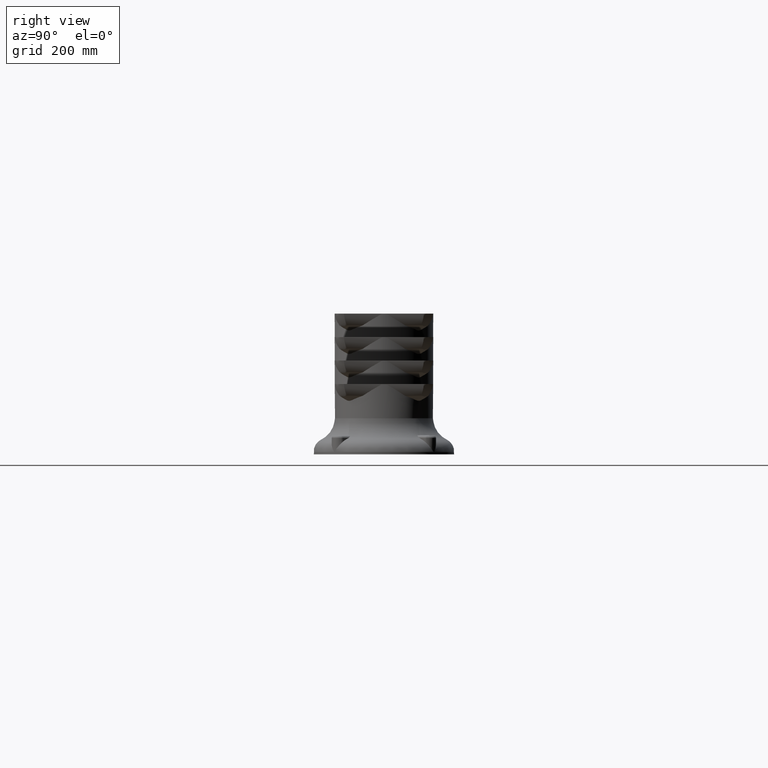
[diagram: clean part render]
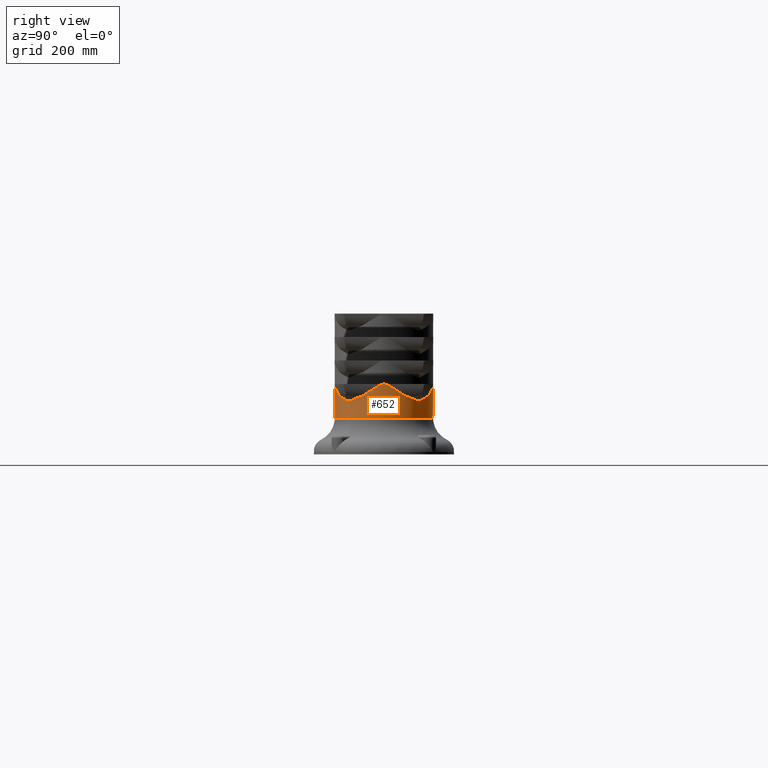
[diagram: same view with one face highlighted and labeled with its STEP entity id]
A machine part, right view. The second image highlights one B-rep face of the part: STEP entity #652.
In plain terms, the highlighted cylindrical surface (bore or boss wall) has radius 105 mm, axis along (-0, 0, 1).
Its self-contained STEP definition (entity closure, byte-faithful):
#652=ADVANCED_FACE('',(#1452,#1453),#1454,.T.);
#1452=FACE_OUTER_BOUND('',#6061,.T.);
#1453=FACE_OUTER_BOUND('',#6062,.T.);
#1454=CYLINDRICAL_SURFACE('',#6063,105.0);
#6061=EDGE_LOOP('',(#9494,#9495,#9496,#9497,#9498,#9499,#9500,#9501,#9502,#9503,#9504,#9505,#9506,#9507,#9508,#9509,#9510,#9511,#9512,#9513));
#6062=EDGE_LOOP('',(#9514));
#6063=AXIS2_PLACEMENT_3D('',#9515,#9516,#9517);
#9494=ORIENTED_EDGE('',*,*,#10851,.T.);
#9495=ORIENTED_EDGE('',*,*,#10847,.T.);
#9496=ORIENTED_EDGE('',*,*,#10887,.T.);
#9497=ORIENTED_EDGE('',*,*,#10888,.T.);
#9498=ORIENTED_EDGE('',*,*,#10885,.T.);
#9499=ORIENTED_EDGE('',*,*,#10889,.T.);
#9500=ORIENTED_EDGE('',*,*,#10890,.T.);
#9501=ORIENTED_EDGE('',*,*,#10891,.T.);
#9502=ORIENTED_EDGE('',*,*,#10892,.T.);
#9503=ORIENTED_EDGE('',*,*,#10893,.T.);
#9504=ORIENTED_EDGE('',*,*,#10894,.T.);
#9505=ORIENTED_EDGE('',*,*,#10867,.T.);
#9506=ORIENTED_EDGE('',*,*,#10877,.T.);
#9507=ORIENTED_EDGE('',*,*,#10895,.T.);
#9508=ORIENTED_EDGE('',*,*,#10833,.T.);
#9509=ORIENTED_EDGE('',*,*,#10864,.T.);
#9510=ORIENTED_EDGE('',*,*,#10862,.T.);
#9511=ORIENTED_EDGE('',*,*,#10896,.T.);
#9512=ORIENTED_EDGE('',*,*,#10838,.T.);
#9513=ORIENTED_EDGE('',*,*,#10845,.T.);
#9514=ORIENTED_EDGE('',*,*,#10824,.T.);
#9515=CARTESIAN_POINT('',(0.0,0.0,50.0));
#9516=DIRECTION('',(0.0,0.0,-1.0));
#9517=DIRECTION('',(-1.0,0.0,0.0));
#10824=EDGE_CURVE('',#12298,#12298,#12299,.T.);
#10833=EDGE_CURVE('',#12316,#12314,#12317,.F.);
#10838=EDGE_CURVE('',#12320,#12324,#12326,.F.);
#10845=EDGE_CURVE('',#12324,#12336,#12338,.F.);
#10847=EDGE_CURVE('',#12342,#12339,#12343,.F.);
#10851=EDGE_CURVE('',#12336,#12342,#12349,.F.);
#10862=EDGE_CURVE('',#12367,#12365,#12368,.F.);
#10864=EDGE_CURVE('',#12314,#12367,#12370,.F.);
#10867=EDGE_CURVE('',#12354,#12372,#12374,.F.);
#10877=EDGE_CURVE('',#12372,#12391,#12393,.F.);
#10885=EDGE_CURVE('',#12406,#12397,#12407,.F.);
#10887=EDGE_CURVE('',#12339,#12409,#12410,.F.);
#10888=EDGE_CURVE('',#12409,#12406,#12411,.F.);
#10889=EDGE_CURVE('',#12397,#12412,#12413,.F.);
#10890=EDGE_CURVE('',#12412,#12414,#12415,.F.);
#10891=EDGE_CURVE('',#12414,#12416,#12417,.F.);
#10892=EDGE_CURVE('',#12416,#12418,#12419,.F.);
#10893=EDGE_CURVE('',#12418,#12394,#12420,.F.);
#10894=EDGE_CURVE('',#12394,#12354,#12421,.F.);
#10895=EDGE_CURVE('',#12391,#12316,#12422,.F.);
#10896=EDGE_CURVE('',#12365,#12320,#12423,.F.);
#12298=VERTEX_POINT('',#19252);
#12299=CIRCLE('',#19253,105.0);
#12314=VERTEX_POINT('',#19302);
#12316=VERTEX_POINT('',#19305);
#12317=B_SPLINE_CURVE_WITH_KNOTS('',3,(#19306,#19307,#19308,#19309,#19310,#19311,#19312,#19313,#19314,#19315,#19316,#19317,#19318,#19319,#19320,#19321,#19322,#19323,#19324,#19325),.UNSPECIFIED.,.F.,.F.,(4,2,2,2,2,2,2,2,2,4),(0.0529752679631362,0.054631858086294,0.0562884482094519,0.0596016284557676,0.0629148087020833,0.066227988948399,0.0728543494410304,0.0794807099336618,0.0927334309189246,0.105986151904187),.UNSPECIFIED.);
#12320=VERTEX_POINT('',#19329);
#12324=VERTEX_POINT('',#19356);
#12326=B_SPLINE_CURVE_WITH_KNOTS('',3,(#19359,#19360,#19361,#19362,#19363,#19364,#19365,#19366,#19367,#19368),.UNSPECIFIED.,.F.,.F.,(4,2,2,2,4),(0.047261650151174,0.0548823564385019,0.0586927095821658,0.0625030627258297,0.0777444753004853),.UNSPECIFIED.);
#12336=VERTEX_POINT('',#19480);
#12338=B_SPLINE_CURVE_WITH_KNOTS('',3,(#19483,#19484,#19485,#19486,#19487,#19488,#19489,#19490,#19491,#19492,#19493,#19494,#19495,#19496,#19497,#19498,#19499,#19500,#19501,#19502,#19503,#19504),.UNSPECIFIED.,.F.,.F.,(4,2,2,2,2,2,2,2,2,2,4),(1.28226765260562E-016,0.00333559431198814,0.00500339146798215,0.00667118862397617,0.0100067829359642,0.0133423772479523,0.0200135658719284,0.0233491601839165,0.0266847544959046,0.0400271317438568,0.0533695089918091),.UNSPECIFIED.);
#12339=VERTEX_POINT('',#19505);
#12342=VERTEX_POINT('',#19511);
#12343=B_SPLINE_CURVE_WITH_KNOTS('',3,(#19512,#19513,#19514,#19515,#19516,#19517,#19518,#19519,#19520,#19521),.UNSPECIFIED.,.F.,.F.,(4,2,2,2,4),(0.604728148748882,0.619942532070945,0.623746127901461,0.627549723731977,0.635156915393009),.UNSPECIFIED.);
#12349=B_SPLINE_CURVE_WITH_KNOTS('',3,(#19554,#19555,#19556,#19557,#19558,#19559,#19560,#19561,#19562,#19563,#19564,#19565,#19566,#19567,#19568,#19569,#19570,#19571,#19572,#19573,#19574,#19575,#19576,#19577,#19578,#19579,#19580,#19581),.UNSPECIFIED.,.F.,.F.,(4,2,2,2,2,2,2,2,2,2,2,2,2,4),(0.743197199230842,0.756729918465083,0.770262637699324,0.777028997316444,0.780412177125004,0.783795356933565,0.787178536742125,0.790561716550685,0.793944896359245,0.795636486263525,0.796482281215665,0.796905178691735,0.79711662742977,0.797328076167805),.UNSPECIFIED.);
#12354=VERTEX_POINT('',#19590);
#12365=VERTEX_POINT('',#19712);
#12367=VERTEX_POINT('',#19721);
#12368=B_SPLINE_CURVE_WITH_KNOTS('',3,(#19722,#19723,#19724,#19725,#19726,#19727,#19728,#19729,#19730,#19731),.UNSPECIFIED.,.F.,.F.,(4,2,2,2,4),(0.0908536728906321,0.094679076869414,0.0985044808481959,0.10615528880576,0.121456904720887),.UNSPECIFIED.);
#12370=B_SPLINE_CURVE_WITH_KNOTS('',3,(#19734,#19735,#19736,#19737,#19738,#19739,#19740,#19741,#19742,#19743,#19744,#19745,#19746,#19747,#19748,#19749,#19750,#19751,#19752,#19753,#19754,#19755,#19756,#19757),.UNSPECIFIED.,.F.,.F.,(4,2,2,2,2,2,2,2,2,2,2,4),(4.65475153733864E-017,0.0132438169907841,0.0264876339815682,0.0331095424769602,0.0397314509723523,0.0430424052200483,0.0446978823438963,0.0463533594677443,0.0496643137154403,0.0513197908392882,0.0521475294012122,0.0529752679631362),.UNSPECIFIED.);
#12372=VERTEX_POINT('',#19760);
#12374=B_SPLINE_CURVE_WITH_KNOTS('',3,(#19765,#19766,#19767,#19768,#19769,#19770),.UNSPECIFIED.,.F.,.F.,(4,2,4),(0.263427661311817,0.278676956871652,0.293926252431487),.UNSPECIFIED.);
#12391=VERTEX_POINT('',#19911);
#12393=B_SPLINE_CURVE_WITH_KNOTS('',3,(#19916,#19917,#19918,#19919,#19920,#19921,#19922,#19923,#19924,#19925,#19926,#19927,#19928,#19929),.UNSPECIFIED.,.F.,.F.,(4,2,2,2,2,2,4),(0.0,0.00337598773289794,0.0050639815993469,0.00675197546579586,0.0101279631986938,0.0118159570651427,0.0135039509315917),.UNSPECIFIED.);
#12394=VERTEX_POINT('',#19930);
#12397=VERTEX_POINT('',#19935);
#12406=VERTEX_POINT('',#19980);
#12407=B_SPLINE_CURVE_WITH_KNOTS('',3,(#19981,#19982,#19983,#19984,#19985,#19986,#19987,#19988,#19989,#19990,#19991,#19992,#19993,#19994,#19995,#19996,#19997,#19998,#19999,#20000),.UNSPECIFIED.,.F.,.F.,(4,2,2,2,2,2,2,2,2,4),(0.0529752679631367,0.0546318733766136,0.0562884787900905,0.0596016896170444,0.0629149004439982,0.0662281112709521,0.0728545329248597,0.0794809545787674,0.0927337978865827,0.105986641194398),.UNSPECIFIED.);
#12409=VERTEX_POINT('',#20003);
#12410=B_SPLINE_CURVE_WITH_KNOTS('',3,(#20004,#20005,#20006,#20007,#20008,#20009,#20010,#20011,#20012,#20013,#20014,#20015,#20016,#20017),.UNSPECIFIED.,.F.,.F.,(4,2,2,2,2,2,4),(0.0,0.0033759877330717,0.00506398159960755,0.00675197546614339,0.0101279631992151,0.011815957065751,0.0135039509322869),.UNSPECIFIED.);
#12411=B_SPLINE_CURVE_WITH_KNOTS('',3,(#20018,#20019,#20020,#20021,#20022,#20023,#20024,#20025,#20026,#20027),.UNSPECIFIED.,.F.,.F.,(4,2,2,2,4),(0.561651975502378,0.576893743808659,0.580704185885229,0.584514627961799,0.59213551211494),.UNSPECIFIED.);
#12412=VERTEX_POINT('',#20028);
#12413=B_SPLINE_CURVE_WITH_KNOTS('',3,(#20029,#20030,#20031,#20032,#20033,#20034,#20035,#20036,#20037,#20038,#20039,#20040,#20041,#20042,#20043,#20044,#20045,#20046,#20047,#20048,#20049,#20050,#20051,#20052),.UNSPECIFIED.,.F.,.F.,(4,2,2,2,2,2,2,2,2,2,2,4),(9.53940196617675E-017,0.0132438169907842,0.0264876339815683,0.0331095424769603,0.0397314509723524,0.0430424052200485,0.0446978823438965,0.0463533594677445,0.0496643137154406,0.0513197908392887,0.0521475294012127,0.0529752679631367),.UNSPECIFIED.);
#12414=VERTEX_POINT('',#20053);
#12415=B_SPLINE_CURVE_WITH_KNOTS('',3,(#20054,#20055,#20056,#20057,#20058,#20059,#20060,#20061),.UNSPECIFIED.,.F.,.F.,(4,2,2,4),(0.43686137349039,0.452096401063177,0.459713914849571,0.467331428635965),.UNSPECIFIED.);
#12416=VERTEX_POINT('',#20062);
#12417=B_SPLINE_CURVE_WITH_KNOTS('',3,(#20063,#20064,#20065,#20066,#20067,#20068,#20069,#20070,#20071,#20072,#20073,#20074,#20075,#20076),.UNSPECIFIED.,.F.,.F.,(4,2,2,2,2,2,4),(0.0,0.00337599409509132,0.00506399114263701,0.00675198819018269,0.010127982285274,0.0118159793328197,0.0135039763803654),.UNSPECIFIED.);
#12418=VERTEX_POINT('',#20077);
#12419=B_SPLINE_CURVE_WITH_KNOTS('',3,(#20078,#20079,#20080,#20081,#20082,#20083),.UNSPECIFIED.,.F.,.F.,(4,2,4),(0.388179078106869,0.403441557141028,0.418704036175188),.UNSPECIFIED.);
#12420=B_SPLINE_CURVE_WITH_KNOTS('',3,(#20084,#20085,#20086,#20087,#20088,#20089,#20090,#20091,#20092,#20093,#20094,#20095,#20096,#20097,#20098,#20099,#20100,#20101,#20102,#20103),.UNSPECIFIED.,.F.,.F.,(4,2,2,2,2,2,2,2,2,4),(0.0529752679631359,0.0546318733766128,0.0562884787900897,0.0596016896170435,0.0629149004439973,0.0662281112709511,0.0728545329248587,0.0794809545787663,0.0927337978865814,0.105986641194397),.UNSPECIFIED.);
#12421=B_SPLINE_CURVE_WITH_KNOTS('',3,(#20104,#20105,#20106,#20107,#20108,#20109,#20110,#20111,#20112,#20113,#20114,#20115,#20116,#20117,#20118,#20119,#20120,#20121,#20122,#20123,#20124,#20125,#20126,#20127),.UNSPECIFIED.,.F.,.F.,(4,2,2,2,2,2,2,2,2,2,2,4),(3.08136895321366E-016,0.0132438169907842,0.026487633981568,0.0331095424769599,0.0397314509723519,0.0430424052200478,0.0446978823438959,0.0463533594677439,0.0496643137154399,0.0513197908392879,0.0521475294012119,0.0529752679631359),.UNSPECIFIED.);
#12422=B_SPLINE_CURVE_WITH_KNOTS('',3,(#20128,#20129,#20130,#20131,#20132,#20133,#20134,#20135,#20136,#20137),.UNSPECIFIED.,.F.,.F.,(4,2,2,2,4),(0.215923523500564,0.219734610747609,0.223545697994654,0.231167872488744,0.246412221476924),.UNSPECIFIED.);
#12423=B_SPLINE_CURVE_WITH_KNOTS('',3,(#20138,#20139,#20140,#20141,#20142,#20143,#20144,#20145,#20146,#20147,#20148,#20149,#20150,#20151),.UNSPECIFIED.,.F.,.F.,(4,2,2,2,2,2,4),(0.0,0.00337598143400586,0.0050639721510088,0.00675196286801174,0.0101279443020177,0.0118159350190206,0.0135039257360236),.UNSPECIFIED.);
#19252=CARTESIAN_POINT('',(105.0,0.0,-91.9374728496907));
#19253=AXIS2_PLACEMENT_3D('',#21766,#21767,#21768);
#19302=CARTESIAN_POINT('',(1.2490009027033E-013,105.0,-165.0));
#19305=CARTESIAN_POINT('',(45.2054129230061,94.7706211990855,-140.0));
#19306=CARTESIAN_POINT('',(2.92876786744288E-013,105.0,-165.0));
#19307=CARTESIAN_POINT('',(0.559636922380468,105.0,-165.0));
#19308=CARTESIAN_POINT('',(1.11661794278559,104.995527342259,-164.960874228965));
#19309=CARTESIAN_POINT('',(2.22570692108497,104.977873031466,-164.810894996055));
#19310=CARTESIAN_POINT('',(2.77965145104868,104.964632505937,-164.699723462338));
#19311=CARTESIAN_POINT('',(4.42346928363859,104.912511535469,-164.28065201145));
#19312=CARTESIAN_POINT('',(5.47184081130426,104.862355143875,-163.897982711073));
#19313=CARTESIAN_POINT('',(7.52174895875096,104.73527515019,-163.032750903864));
#19314=CARTESIAN_POINT('',(8.52274961057367,104.658243879366,-162.549012057191));
#19315=CARTESIAN_POINT('',(10.4998063026137,104.478415667758,-161.530253170439));
#19316=CARTESIAN_POINT('',(11.4755413491454,104.375587201475,-160.994523109309));
#19317=CARTESIAN_POINT('',(14.3808860467174,104.028818738589,-159.345015417682));
#19318=CARTESIAN_POINT('',(16.2746770558397,103.748485946508,-158.199295098343));
#19319=CARTESIAN_POINT('',(20.0192822423246,103.091424415258,-155.890520711078));
#19320=CARTESIAN_POINT('',(21.8692358892809,102.714589214007,-154.725116424576));
#19321=CARTESIAN_POINT('',(27.3759845228823,101.438438151106,-151.234753039369));
#19322=CARTESIAN_POINT('',(30.9901419797646,100.394109672947,-148.916080649132));
#19323=CARTESIAN_POINT('',(38.1480687307734,97.8983708192422,-144.375739644476));
#19324=CARTESIAN_POINT('',(41.6905081921658,96.4472243249515,-142.151794351967));
#19325=CARTESIAN_POINT('',(45.2054129230064,94.7706211990851,-140.0));
#19329=CARTESIAN_POINT('',(-78.7785828636489,69.4186071433993,-130.204488085818));
#19356=CARTESIAN_POINT('',(-94.7706211990853,45.2054129230059,-140.0));
#19359=CARTESIAN_POINT('',(-94.7706211990854,45.2054129230059,-140.0));
#19360=CARTESIAN_POINT('',(-93.718985932684,47.4101074723395,-139.261652412061));
#19361=CARTESIAN_POINT('',(-92.5942003216278,49.5705302421163,-138.49208950529));
#19362=CARTESIAN_POINT('',(-90.7970444298826,52.7482471103969,-137.302024445151));
#19363=CARTESIAN_POINT('',(-90.1796384667046,53.7969847319297,-136.899371172522));
#19364=CARTESIAN_POINT('',(-88.9077841440547,55.873864004803,-136.083866350222));
#19365=CARTESIAN_POINT('',(-88.2524676896332,56.9033064100413,-135.670478687571));
#19366=CARTESIAN_POINT('',(-84.8922191008149,61.9843566992182,-133.588558106415));
#19367=CARTESIAN_POINT('',(-81.958558335477,65.8098045113618,-131.888515401494));
#19368=CARTESIAN_POINT('',(-78.7785569708876,69.4185779282796,-130.204474373722));
#19480=CARTESIAN_POINT('',(-105.0,1.2490009027033E-013,-165.0));
#19483=CARTESIAN_POINT('',(-105.0,0.0,-165.0));
#19484=CARTESIAN_POINT('',(-105.0,1.13588554444859,-165.0));
#19485=CARTESIAN_POINT('',(-104.981699183321,2.23751335050485,-164.837083043986));
#19486=CARTESIAN_POINT('',(-104.93060358624,3.85478123633379,-164.42605111249));
#19487=CARTESIAN_POINT('',(-104.90960350891,4.38811419534756,-164.261779016902));
#19488=CARTESIAN_POINT('',(-104.860003455475,5.44611144816269,-163.892387296658));
#19489=CARTESIAN_POINT('',(-104.83135578452,5.97105298971405,-163.687056670346));
#19490=CARTESIAN_POINT('',(-104.73566025942,7.5171795062609,-163.03510703998));
#19491=CARTESIAN_POINT('',(-104.658570700645,8.51845803724773,-162.551071018721));
#19492=CARTESIAN_POINT('',(-104.47929974017,10.4907804398943,-161.535055533915));
#19493=CARTESIAN_POINT('',(-104.377079779888,11.4613775656243,-161.002288287983));
#19494=CARTESIAN_POINT('',(-104.033322097794,14.3464187033715,-159.365127914467));
#19495=CARTESIAN_POINT('',(-103.75474045212,16.2349809057401,-158.223412557887));
#19496=CARTESIAN_POINT('',(-103.262469568479,19.0464582388208,-156.490498708333));
#19497=CARTESIAN_POINT('',(-103.085955751981,19.9796668615874,-155.908781449674));
#19498=CARTESIAN_POINT('',(-102.707822193513,21.8404354687595,-154.741268343382));
#19499=CARTESIAN_POINT('',(-102.506066070156,22.7684930909879,-154.15511655317));
#19500=CARTESIAN_POINT('',(-101.437062053609,27.3840863084303,-151.229698200384));
#19501=CARTESIAN_POINT('',(-100.388175188989,31.0096782003142,-148.903597542033));
#19502=CARTESIAN_POINT('',(-97.8891566159095,38.1719645405908,-144.360673955487));
#19503=CARTESIAN_POINT('',(-96.4392210523005,41.7072866058936,-142.141522751836));
#19504=CARTESIAN_POINT('',(-94.7706211990849,45.2054129230069,-140.0));
#19505=CARTESIAN_POINT('',(-78.7790007725139,-69.4186545887813,-130.204841826271));
#19511=CARTESIAN_POINT('',(-94.7706211990854,-45.2054129230055,-140.0));
#19512=CARTESIAN_POINT('',(-78.7787716637909,-69.4183342867307,-130.204588069386));
#19513=CARTESIAN_POINT('',(-81.9623848581456,-65.8054395164821,-131.890548424813));
#19514=CARTESIAN_POINT('',(-84.8918820419808,-61.9834891271241,-133.58861277539));
#19515=CARTESIAN_POINT('',(-88.2412439706994,-56.9206192654834,-135.663459449753));
#19516=CARTESIAN_POINT('',(-88.8953921448565,-55.8936680492118,-136.075992827701));
#19517=CARTESIAN_POINT('',(-90.1719574357903,-53.8099522837674,-136.894375122716));
#19518=CARTESIAN_POINT('',(-90.7935285083935,-52.7543922671603,-137.299706550821));
#19519=CARTESIAN_POINT('',(-92.5967568152481,-49.5661529395342,-138.493761784816));
#19520=CARTESIAN_POINT('',(-93.7216414636633,-47.4045403000863,-139.263516846391));
#19521=CARTESIAN_POINT('',(-94.7706211990854,-45.2054129230059,-140.0));
#19554=CARTESIAN_POINT('',(-94.7706211990851,-45.2054129230065,-140.0));
#19555=CARTESIAN_POINT('',(-96.4475446301919,-41.6898366901344,-142.152205439718));
#19556=CARTESIAN_POINT('',(-97.8990541450872,-38.1464427533276,-144.376758950356));
#19557=CARTESIAN_POINT('',(-100.395431263249,-30.9860174708179,-148.91870894115));
#19558=CARTESIAN_POINT('',(-101.440036489564,-27.3703223301348,-151.238387748556));
#19559=CARTESIAN_POINT('',(-102.716421406276,-21.8607104265425,-154.73049717006));
#19560=CARTESIAN_POINT('',(-103.093304383817,-20.0097094119041,-155.896523412681));
#19561=CARTESIAN_POINT('',(-103.586110299073,-17.1994832186662,-157.629045787544));
#19562=CARTESIAN_POINT('',(-103.7382821602,-16.2570405104156,-158.203677515222));
#19563=CARTESIAN_POINT('',(-104.018322519635,-14.356571035864,-159.340528470933));
#19564=CARTESIAN_POINT('',(-104.146319626539,-13.3975068241589,-159.903508752666));
#19565=CARTESIAN_POINT('',(-104.376977698548,-11.4627923026297,-161.001578397337));
#19566=CARTESIAN_POINT('',(-104.479658786869,-10.4874987338699,-161.536892043108));
#19567=CARTESIAN_POINT('',(-104.659373012804,-8.50895824881952,-162.555817779382));
#19568=CARTESIAN_POINT('',(-104.736441120744,-7.50608744517276,-163.040180853786));
#19569=CARTESIAN_POINT('',(-104.863662533415,-5.44754324918582,-163.907402762345));
#19570=CARTESIAN_POINT('',(-104.913868443436,-4.38660523229281,-164.291352705003));
#19571=CARTESIAN_POINT('',(-104.964829406118,-2.7703992586421,-164.701413998741));
#19572=CARTESIAN_POINT('',(-104.977844783384,-2.22618328034606,-164.810661922256));
#19573=CARTESIAN_POINT('',(-104.991034136286,-1.39953486333548,-164.922699537259));
#19574=CARTESIAN_POINT('',(-104.994373386713,-1.12226550648775,-164.951410931959));
#19575=CARTESIAN_POINT('',(-104.997735618125,-0.703559343837834,-164.980400740896));
#19576=CARTESIAN_POINT('',(-104.998581828161,-0.563524068053009,-164.98772018559));
#19577=CARTESIAN_POINT('',(-104.999430972715,-0.352748821635344,-164.995069967844));
#19578=CARTESIAN_POINT('',(-104.999643987583,-0.282370059995109,-164.996915215689));
#19579=CARTESIAN_POINT('',(-104.999928501288,-0.14136864676107,-164.999380234053));
#19580=CARTESIAN_POINT('',(-105.0,-0.0720056285210285,-165.0));
#19581=CARTESIAN_POINT('',(-105.0,-2.45582766141393E-014,-165.0));
#19590=CARTESIAN_POINT('',(94.7706211990856,45.2054129230059,-140.0));
#19712=CARTESIAN_POINT('',(-69.4195999590601,78.7798550654873,-130.205294321023));
#19721=CARTESIAN_POINT('',(-45.2054129230057,94.7706211990855,-140.0));
#19722=CARTESIAN_POINT('',(-69.4183249734136,78.7787798705054,-130.204592415453));
#19723=CARTESIAN_POINT('',(-68.5064801631653,79.5822797402316,-130.630105518343));
#19724=CARTESIAN_POINT('',(-67.5778960058831,80.3723313098654,-131.05787879086));
#19725=CARTESIAN_POINT('',(-65.6952319624315,81.918375021524,-131.91248155196));
#19726=CARTESIAN_POINT('',(-64.7429074091537,82.6730105784675,-132.338529999681));
#19727=CARTESIAN_POINT('',(-61.8527869929402,84.8829528986624,-133.61060928005));
#19728=CARTESIAN_POINT('',(-59.8819070676959,86.2843873067415,-134.450601122272));
#19729=CARTESIAN_POINT('',(-53.8332627713084,90.2791945425468,-136.927219994778));
#19730=CARTESIAN_POINT('',(-49.6206597248281,92.6645565525947,-138.521343091602));
#19731=CARTESIAN_POINT('',(-45.2054129230058,94.7706211990854,-140.0));
#19734=CARTESIAN_POINT('',(-45.2054129230057,94.7706211990855,-140.0));
#19735=CARTESIAN_POINT('',(-41.6690832496596,96.4574439833286,-142.164910516929));
#19736=CARTESIAN_POINT('',(-38.1132539546151,97.9121472179046,-144.397653682108));
#19737=CARTESIAN_POINT('',(-30.9437131776079,100.408641633136,-148.945702117299));
#19738=CARTESIAN_POINT('',(-27.3313026090905,101.450106283527,-151.26328498223));
#19739=CARTESIAN_POINT('',(-21.8390868001762,102.720909894464,-154.744118900467));
#19740=CARTESIAN_POINT('',(-19.9959687630529,103.095778190044,-155.905026878397));
#19741=CARTESIAN_POINT('',(-16.2695582721816,103.749119133667,-158.202318121093));
#19742=CARTESIAN_POINT('',(-14.3875057761383,104.02764053665,-159.340717382955));
#19743=CARTESIAN_POINT('',(-11.5031856896916,104.372478645037,-160.979093572037));
#19744=CARTESIAN_POINT('',(-10.5313106009537,104.475254553933,-161.513312524283));
#19745=CARTESIAN_POINT('',(-9.04702007925871,104.6106985779,-162.279197650009));
#19746=CARTESIAN_POINT('',(-8.54777412699935,104.652722933001,-162.528472944777));
#19747=CARTESIAN_POINT('',(-7.53712506137413,104.730361431759,-163.009809940438));
#19748=CARTESIAN_POINT('',(-7.02442960949112,104.766052922119,-163.242440862693));
#19749=CARTESIAN_POINT('',(-5.47303469936643,104.862384657489,-163.897912523383));
#19750=CARTESIAN_POINT('',(-4.42172835766284,104.912459006065,-164.280350935904));
#19751=CARTESIAN_POINT('',(-2.79607976418292,104.964164704171,-164.695902392247));
#19752=CARTESIAN_POINT('',(-2.24592503240664,104.977476500861,-164.807551501694));
#19753=CARTESIAN_POINT('',(-1.40449229959242,104.990980990347,-164.922239334423));
#19754=CARTESIAN_POINT('',(-1.12181510178997,104.994383028389,-164.951493532986));
#19755=CARTESIAN_POINT('',(-0.559919836707671,104.998882976968,-164.990294026214));
#19756=CARTESIAN_POINT('',(-0.279630461907513,105.0,-165.0));
#19757=CARTESIAN_POINT('',(2.92876786744288E-013,105.0,-165.0));
#19760=CARTESIAN_POINT('',(78.7787747125252,69.4189111419255,-130.204850472692));
#19765=CARTESIAN_POINT('',(78.778545598304,69.418590834271,-130.20459671876));
#19766=CARTESIAN_POINT('',(81.9799516749754,65.7855278239335,-131.899980235956));
#19767=CARTESIAN_POINT('',(84.9068856058977,61.9608689342514,-133.598038955915));
#19768=CARTESIAN_POINT('',(90.2366395859112,53.9043354343864,-136.89972604069));
#19769=CARTESIAN_POINT('',(92.6397402328637,49.672680591088,-138.504084115334));
#19770=CARTESIAN_POINT('',(94.7706009056892,45.2054554669521,-140.000155938894));
#19911=CARTESIAN_POINT('',(69.4184697039618,78.77870396988,-130.204552220439));
#19916=CARTESIAN_POINT('',(69.4184443316786,78.7786746941686,-130.204537444001));
#19917=CARTESIAN_POINT('',(70.2200301263183,78.0723307619016,-129.830476294001));
#19918=CARTESIAN_POINT('',(71.0271591441236,77.33937280005,-129.550691824903));
#19919=CARTESIAN_POINT('',(72.243361146454,76.1984629146838,-129.268074854167));
#19920=CARTESIAN_POINT('',(72.6510209831383,75.8099160729619,-129.196857204034));
#19921=CARTESIAN_POINT('',(73.4563011146896,75.0299010490484,-129.102717591701));
#19922=CARTESIAN_POINT('',(73.8550286232395,74.6374343415913,-129.079389827933));
#19923=CARTESIAN_POINT('',(75.0396054285358,73.4527402434325,-129.079843457192));
#19924=CARTESIAN_POINT('',(75.8138718667838,72.6532000610427,-129.173357143919));
#19925=CARTESIAN_POINT('',(76.9524433335001,71.4396887356056,-129.454665770358));
#19926=CARTESIAN_POINT('',(77.3289485501434,71.0319149615304,-129.572560787175));
#19927=CARTESIAN_POINT('',(78.0648381750916,70.2223630168451,-129.853915359822));
#19928=CARTESIAN_POINT('',(78.425310866314,69.8194523289978,-130.017533576061));
#19929=CARTESIAN_POINT('',(78.7784486255111,69.4187008820947,-130.204546091667));
#19930=CARTESIAN_POINT('',(105.0,0.0,-165.0));
#19935=CARTESIAN_POINT('',(1.2490009027033E-013,-105.0,-165.0));
#19980=CARTESIAN_POINT('',(-45.2059210937147,-94.7703788009144,-140.0));
#19981=CARTESIAN_POINT('',(7.43561064986123E-014,-105.0,-165.000000000001));
#19982=CARTESIAN_POINT('',(-0.559642087826273,-105.0,-165.000000000001));
#19983=CARTESIAN_POINT('',(-1.11662822425639,-104.995527259727,-164.960873500827));
#19984=CARTESIAN_POINT('',(-2.22572735027046,-104.977872625147,-164.810891571254));
#19985=CARTESIAN_POINT('',(-2.77967719000878,-104.964631848415,-164.699717997797));
#19986=CARTESIAN_POINT('',(-4.42350884026456,-104.912509964045,-164.280639732289));
#19987=CARTESIAN_POINT('',(-5.47188902617048,-104.862352712156,-163.897964697292));
#19988=CARTESIAN_POINT('',(-7.52181426768866,-104.735270544195,-163.032721001025));
#19989=CARTESIAN_POINT('',(-8.52282333120118,-104.658237956602,-162.548975946585));
#19990=CARTESIAN_POINT('',(-10.4998968159406,-104.478406652141,-161.530204652664));
#19991=CARTESIAN_POINT('',(-11.475640235519,-104.375576409367,-160.994468374454));
#19992=CARTESIAN_POINT('',(-14.3810100696907,-104.028801914594,-159.344942187835));
#19993=CARTESIAN_POINT('',(-16.2748165817785,-103.748464366387,-158.199210527125));
#19994=CARTESIAN_POINT('',(-20.0194537804733,-103.091391413083,-155.890413492451));
#19995=CARTESIAN_POINT('',(-21.8694233565051,-102.714549613914,-154.724998216422));
#19996=CARTESIAN_POINT('',(-27.3762195154177,-101.438376004276,-151.23460286324));
#19997=CARTESIAN_POINT('',(-30.9904083005718,-100.394028851792,-148.915910471228));
#19998=CARTESIAN_POINT('',(-38.1483970184676,-97.8982443185365,-144.375532656658));
#19999=CARTESIAN_POINT('',(-41.6908671202279,-96.4470708403663,-142.151570547803));
#20000=CARTESIAN_POINT('',(-45.2058022335419,-94.7704354976904,-139.999761667674));
#20003=CARTESIAN_POINT('',(-69.4187262526021,-78.7784778991736,-130.204560867039));
#20004=CARTESIAN_POINT('',(-69.4187008820945,-78.7784486255111,-130.20454609158));
#20005=CARTESIAN_POINT('',(-70.220284024752,-78.0721023927134,-129.830483611885));
#20006=CARTESIAN_POINT('',(-71.0274103946006,-77.3391420515513,-129.550697734608));
#20007=CARTESIAN_POINT('',(-72.243608419246,-76.1982284749778,-129.268078575695));
#20008=CARTESIAN_POINT('',(-72.6512669266634,-75.8096803763589,-129.196860180142));
#20009=CARTESIAN_POINT('',(-73.4565444423151,-75.0296628235073,-129.102719077102));
#20010=CARTESIAN_POINT('',(-73.8552706574863,-74.6371948437583,-129.079390566542));
#20011=CARTESIAN_POINT('',(-75.0398436225917,-73.4524969026906,-129.079841958331));
#20012=CARTESIAN_POINT('',(-75.8141075531803,-72.6529541243144,-129.173354160532));
#20013=CARTESIAN_POINT('',(-76.9526753265808,-71.4394388405352,-129.45466060044));
#20014=CARTESIAN_POINT('',(-77.3291793243227,-71.0316637296364,-129.572554894658));
#20015=CARTESIAN_POINT('',(-78.0650665643608,-70.2221091215247,-129.853908062067));
#20016=CARTESIAN_POINT('',(-78.4255380846098,-69.819197105021,-130.017525592833));
#20017=CARTESIAN_POINT('',(-78.7786746941686,-69.4184443316786,-130.204537443914));
#20018=CARTESIAN_POINT('',(-45.2059210937146,-94.7703788009146,-140.0));
#20019=CARTESIAN_POINT('',(-49.6094141179612,-92.6698917003092,-138.525259057225));
#20020=CARTESIAN_POINT('',(-53.8246918171539,-90.2851451586188,-136.930982647308));
#20021=CARTESIAN_POINT('',(-58.8814109533781,-86.9450889900326,-134.860378952656));
#20022=CARTESIAN_POINT('',(-59.8820571682105,-86.2590037785843,-134.442318749056));
#20023=CARTESIAN_POINT('',(-61.8622209282769,-84.8501156474858,-133.599936209773));
#20024=CARTESIAN_POINT('',(-62.8433741810614,-84.1260229198115,-133.174883158312));
#20025=CARTESIAN_POINT('',(-65.7392694832855,-81.9100609868295,-131.899839132813));
#20026=CARTESIAN_POINT('',(-67.6082972000923,-80.373756244752,-131.04937840369));
#20027=CARTESIAN_POINT('',(-69.4186970413418,-78.7784520099399,-130.204547156777));
#20028=CARTESIAN_POINT('',(45.2054129230058,-94.7706211990854,-140.0));
#20029=CARTESIAN_POINT('',(45.2054129230059,-94.7706211990854,-140.0));
#20030=CARTESIAN_POINT('',(41.6690832496598,-96.4574439833285,-142.164910516929));
#20031=CARTESIAN_POINT('',(38.1132539546153,-97.9121472179046,-144.397653682108));
#20032=CARTESIAN_POINT('',(30.9437131776081,-100.408641633136,-148.945702117299));
#20033=CARTESIAN_POINT('',(27.3313026090906,-101.450106283527,-151.26328498223));
#20034=CARTESIAN_POINT('',(21.8390868001762,-102.720909894464,-154.744118900467));
#20035=CARTESIAN_POINT('',(19.9959687630529,-103.095778190044,-155.905026878397));
#20036=CARTESIAN_POINT('',(16.2695582721817,-103.749119133667,-158.202318121093));
#20037=CARTESIAN_POINT('',(14.3875057761383,-104.02764053665,-159.340717382955));
#20038=CARTESIAN_POINT('',(11.5031856896916,-104.372478645037,-160.979093572037));
#20039=CARTESIAN_POINT('',(10.5313106009538,-104.475254553933,-161.513312524283));
#20040=CARTESIAN_POINT('',(9.04702007925878,-104.6106985779,-162.279197650009));
#20041=CARTESIAN_POINT('',(8.54777412699942,-104.652722933001,-162.528472944777));
#20042=CARTESIAN_POINT('',(7.5371250613742,-104.730361431759,-163.009809940439));
#20043=CARTESIAN_POINT('',(7.02442960949126,-104.766052922119,-163.242440862693));
#20044=CARTESIAN_POINT('',(5.47303469936659,-104.862384657489,-163.897912523384));
#20045=CARTESIAN_POINT('',(4.42172835766301,-104.912459006065,-164.280350935904));
#20046=CARTESIAN_POINT('',(2.79607976418306,-104.964164704171,-164.695902392248));
#20047=CARTESIAN_POINT('',(2.24592503240675,-104.977476500861,-164.807551501694));
#20048=CARTESIAN_POINT('',(1.40449229959249,-104.990980990347,-164.922239334424));
#20049=CARTESIAN_POINT('',(1.12181510179036,-104.994383028389,-164.951493532987));
#20050=CARTESIAN_POINT('',(0.559919836708059,-104.998882976968,-164.990294026215));
#20051=CARTESIAN_POINT('',(0.279630461907885,-105.0,-165.000000000001));
#20052=CARTESIAN_POINT('',(6.83954246964373E-014,-105.0,-165.000000000001));
#20053=CARTESIAN_POINT('',(69.418968506706,-78.7793851541948,-130.20503806883));
#20054=CARTESIAN_POINT('',(69.4183059723998,-78.7787966138242,-130.204729650522));
#20055=CARTESIAN_POINT('',(65.8046650521758,-81.9630649938577,-131.891045198757));
#20056=CARTESIAN_POINT('',(61.9873922881695,-84.8882204002622,-133.586799974882));
#20057=CARTESIAN_POINT('',(55.930466423363,-88.8968200613374,-136.069570974652));
#20058=CARTESIAN_POINT('',(53.8560222656059,-90.1695223718902,-136.886900652871));
#20059=CARTESIAN_POINT('',(49.5876912913192,-92.5854997904373,-138.486235694104));
#20060=CARTESIAN_POINT('',(47.4154202371363,-93.716450535771,-139.260039662714));
#20061=CARTESIAN_POINT('',(45.205455466952,-94.7706009056892,-140.000155938894));
#20062=CARTESIAN_POINT('',(78.7785990056142,-69.4185888133461,-130.204625001932));
#20063=CARTESIAN_POINT('',(78.7785697338252,-69.4185634444623,-130.204610227669));
#20064=CARTESIAN_POINT('',(78.0722235546789,-70.2201493455393,-129.830546950035));
#20065=CARTESIAN_POINT('',(77.3392631895859,-71.027278525275,-129.550760687812));
#20066=CARTESIAN_POINT('',(76.1983494548849,-72.2434808249506,-129.268141506098));
#20067=CARTESIAN_POINT('',(75.8098012629614,-72.6511407931212,-129.196923193974));
#20068=CARTESIAN_POINT('',(75.0297834816956,-73.4564212085064,-129.102782451748));
#20069=CARTESIAN_POINT('',(74.6373153836582,-73.8551488493508,-129.079454219155));
#20070=CARTESIAN_POINT('',(73.4526170773761,-75.039726021901,-129.079906727217));
#20071=CARTESIAN_POINT('',(72.6530740412004,-75.813992665304,-129.173420042928));
#20072=CARTESIAN_POINT('',(71.4395583592738,-76.9525643777038,-129.454728701851));
#20073=CARTESIAN_POINT('',(71.0317831319308,-77.3290696519159,-129.572623827353));
#20074=CARTESIAN_POINT('',(70.2222283564857,-78.0649593145484,-129.853978800438));
#20075=CARTESIAN_POINT('',(69.8193162704138,-78.4254320014718,-130.017597313152));
#20076=CARTESIAN_POINT('',(69.4185634444626,-78.7785697338251,-130.204610227669));
#20077=CARTESIAN_POINT('',(94.7703788009145,-45.2059210937149,-140.0));
#20078=CARTESIAN_POINT('',(94.7703788009147,-45.2059210937144,-140.0));
#20079=CARTESIAN_POINT('',(92.6514215784878,-49.6481351615582,-138.512291281865));
#20080=CARTESIAN_POINT('',(90.2570931625463,-53.8701024238445,-136.913030655037));
#20081=CARTESIAN_POINT('',(84.9301154391869,-61.9290424017233,-133.611800608714));
#20082=CARTESIAN_POINT('',(81.9973959903334,-65.7657285102742,-131.909219158883));
#20083=CARTESIAN_POINT('',(78.7785731179991,-69.4185596039854,-130.204611292497));
#20084=CARTESIAN_POINT('',(105.0,1.64553353990871E-013,-164.999999999999));
#20085=CARTESIAN_POINT('',(105.0,-0.559642087826168,-164.999999999999));
#20086=CARTESIAN_POINT('',(104.995527259727,-1.11662822425626,-164.960873500826));
#20087=CARTESIAN_POINT('',(104.977872625147,-2.22572735027029,-164.810891571252));
#20088=CARTESIAN_POINT('',(104.964631848415,-2.77967719000847,-164.699717997795));
#20089=CARTESIAN_POINT('',(104.912509964045,-4.42350884026427,-164.280639732288));
#20090=CARTESIAN_POINT('',(104.862352712156,-5.47188902617017,-163.897964697291));
#20091=CARTESIAN_POINT('',(104.735270544195,-7.52181426768836,-163.032721001025));
#20092=CARTESIAN_POINT('',(104.658237956602,-8.52282333120086,-162.548975946584));
#20093=CARTESIAN_POINT('',(104.478406652141,-10.4998968159403,-161.530204652663));
#20094=CARTESIAN_POINT('',(104.375576409367,-11.4756402355187,-160.994468374453));
#20095=CARTESIAN_POINT('',(104.028801914594,-14.3810100696903,-159.344942187834));
#20096=CARTESIAN_POINT('',(103.748464366387,-16.2748165817781,-158.199210527124));
#20097=CARTESIAN_POINT('',(103.091391413083,-20.0194537804729,-155.89041349245));
#20098=CARTESIAN_POINT('',(102.714549613914,-21.8694233565048,-154.724998216422));
#20099=CARTESIAN_POINT('',(101.438376004276,-27.3762195154173,-151.23460286324));
#20100=CARTESIAN_POINT('',(100.394028851792,-30.9904083005714,-148.915910471228));
#20101=CARTESIAN_POINT('',(97.8982443185367,-38.1483970184671,-144.375532656657));
#20102=CARTESIAN_POINT('',(96.4470708403665,-41.6908671202273,-142.151570547803));
#20103=CARTESIAN_POINT('',(94.7704354976907,-45.2058022335412,-139.999761667674));
#20104=CARTESIAN_POINT('',(94.7706211990856,45.2054129230055,-140.0));
#20105=CARTESIAN_POINT('',(96.4574439833286,41.6690832496594,-142.164910516929));
#20106=CARTESIAN_POINT('',(97.9121472179048,38.1132539546146,-144.397653682108));
#20107=CARTESIAN_POINT('',(100.408641633136,30.9437131776075,-148.945702117299));
#20108=CARTESIAN_POINT('',(101.450106283527,27.3313026090901,-151.26328498223));
#20109=CARTESIAN_POINT('',(102.720909894464,21.8390868001758,-154.744118900466));
#20110=CARTESIAN_POINT('',(103.095778190044,19.9959687630526,-155.905026878396));
#20111=CARTESIAN_POINT('',(103.749119133667,16.2695582721814,-158.202318121093));
#20112=CARTESIAN_POINT('',(104.02764053665,14.387505776138,-159.340717382955));
#20113=CARTESIAN_POINT('',(104.372478645037,11.5031856896913,-160.979093572037));
#20114=CARTESIAN_POINT('',(104.475254553933,10.5313106009535,-161.513312524282));
#20115=CARTESIAN_POINT('',(104.6106985779,9.04702007925849,-162.279197650008));
#20116=CARTESIAN_POINT('',(104.652722933001,8.54777412699912,-162.528472944776));
#20117=CARTESIAN_POINT('',(104.730361431759,7.5371250613739,-163.009809940438));
#20118=CARTESIAN_POINT('',(104.766052922119,7.0244296094911,-163.242440862692));
#20119=CARTESIAN_POINT('',(104.862384657489,5.47303469936644,-163.897912523383));
#20120=CARTESIAN_POINT('',(104.912459006065,4.42172835766288,-164.280350935903));
#20121=CARTESIAN_POINT('',(104.964164704171,2.79607976418298,-164.695902392247));
#20122=CARTESIAN_POINT('',(104.977476500861,2.24592503240669,-164.807551501693));
#20123=CARTESIAN_POINT('',(104.990980990347,1.40449229959248,-164.922239334423));
#20124=CARTESIAN_POINT('',(104.994383028389,1.12181510179042,-164.951493532986));
#20125=CARTESIAN_POINT('',(104.998882976968,0.559919836708127,-164.990294026214));
#20126=CARTESIAN_POINT('',(105.0,0.279630461907967,-164.999999999999));
#20127=CARTESIAN_POINT('',(105.0,1.64553353990871E-013,-164.999999999999));
#20128=CARTESIAN_POINT('',(45.2054129230062,94.7706211990852,-140.0));
#20129=CARTESIAN_POINT('',(46.3168382855145,94.2404733345931,-139.627785973422));
#20130=CARTESIAN_POINT('',(47.4202228616855,93.6900542111789,-139.246491864448));
#20131=CARTESIAN_POINT('',(49.5953986575062,92.5570106817878,-138.473369440752));
#20132=CARTESIAN_POINT('',(50.668843987101,91.9736459440952,-138.081010331497));
#20133=CARTESIAN_POINT('',(53.8484057202506,90.1736236287702,-136.889512026449));
#20134=CARTESIAN_POINT('',(55.9138310666172,88.9071262637724,-136.076004023296));
#20135=CARTESIAN_POINT('',(61.957194581066,84.9096016935556,-133.599495827473));
#20136=CARTESIAN_POINT('',(65.7833120459032,81.9818918642241,-131.900875942145));
#20137=CARTESIAN_POINT('',(69.4184404907424,78.7786780787369,-130.20453850917));
#20138=CARTESIAN_POINT('',(-78.7785535860638,69.4185817694922,-130.204473436859));
#20139=CARTESIAN_POINT('',(-78.0722096042504,70.2201648010536,-129.830413081912));
#20140=CARTESIAN_POINT('',(-77.3392516581085,71.0272910186583,-129.550628982787));
#20141=CARTESIAN_POINT('',(-76.1983418945763,72.2434887836863,-129.268012019006));
#20142=CARTESIAN_POINT('',(-75.8097951501555,72.6511471546062,-129.196794286237));
#20143=CARTESIAN_POINT('',(-75.0297803998647,73.4564243394468,-129.102654315564));
#20144=CARTESIAN_POINT('',(-74.6373138263997,73.8551504067074,-129.079326272395));
#20145=CARTESIAN_POINT('',(-73.452620119304,75.0397229797695,-129.079778781443));
#20146=CARTESIAN_POINT('',(-72.6530801838101,75.813986717873,-129.173291352704));
#20147=CARTESIAN_POINT('',(-71.4395691943936,76.9525543038221,-129.454597785261));
#20148=CARTESIAN_POINT('',(-71.0317955320538,77.3290582478002,-129.572491978335));
#20149=CARTESIAN_POINT('',(-70.2222437741494,78.0649454321408,-129.853844747628));
#20150=CARTESIAN_POINT('',(-69.8193331617987,78.4254169514128,-130.017461983087));
#20151=CARTESIAN_POINT('',(-69.4185817694921,78.778553586064,-130.204473436859));
#21766=CARTESIAN_POINT('',(0.0,0.0,-91.9374728496907));
#21767=DIRECTION('',(0.0,0.0,-1.0));
#21768=DIRECTION('',(1.0,0.0,0.0));